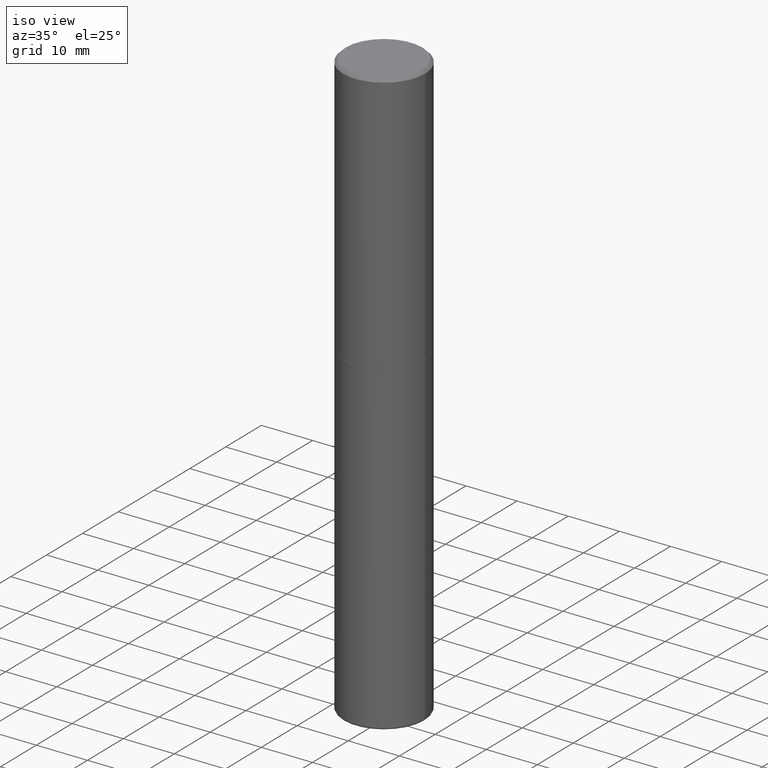
[diagram: clean part render]
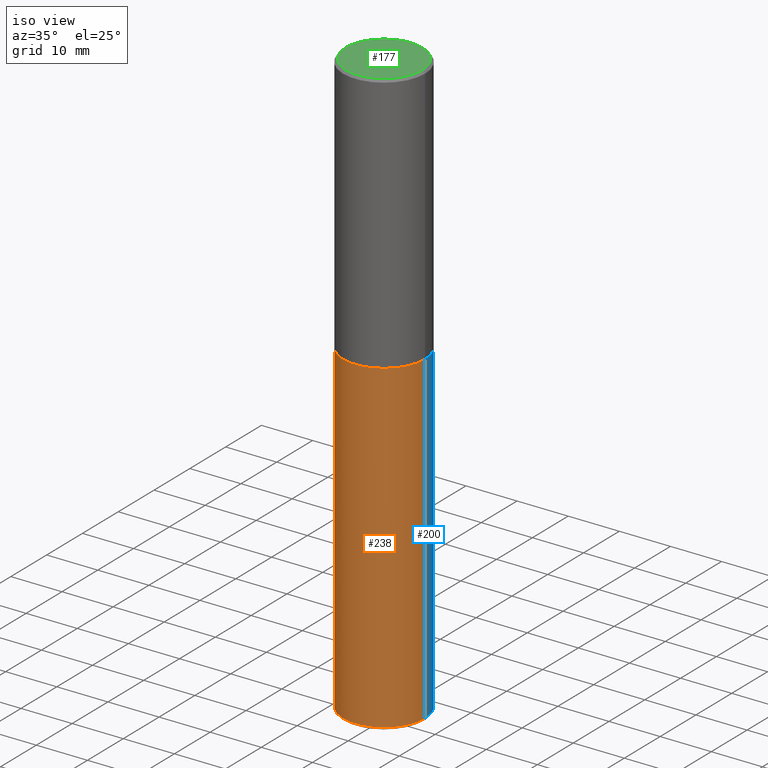
[diagram: same view with three faces highlighted in distinct colors, each labeled with its STEP entity id]
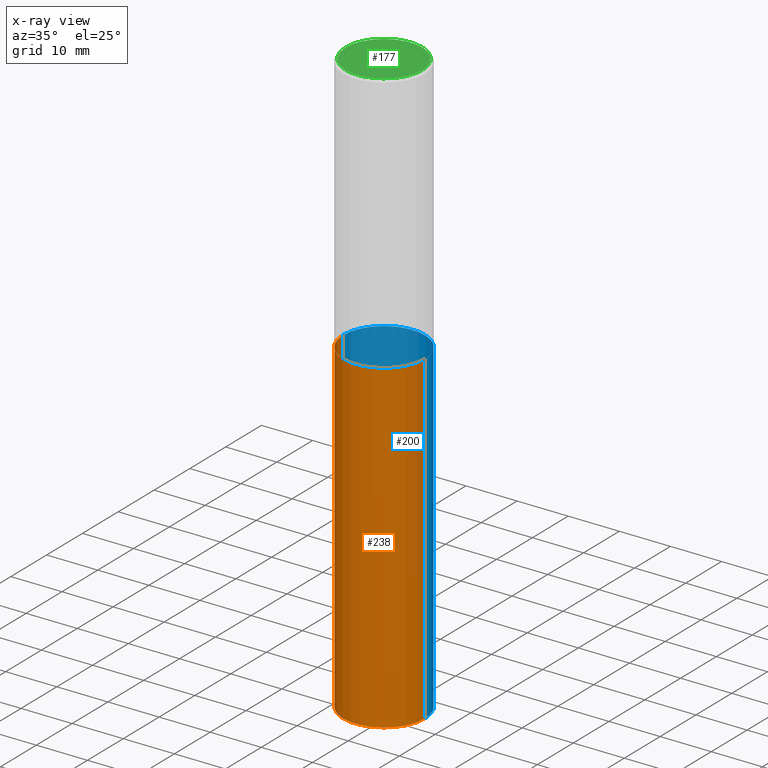
[diagram: x-ray of the same camera — body ghosted, the three highlighted faces saturated]
A machine part, iso view with three faces highlighted in distinct colors.
The next image is the same camera in x-ray (body ghosted, the three faces saturated) — at least one of them is partly hidden behind the body in this view.
Their STEP definitions:

[orange] entity #238 — the highlighted cylindrical surface (partial cylindrical patch) has radius 7.9997 mm, axis along (-0, 0, 1).
#8 = CARTESIAN_POINT ( 'NONE',  ( -0.3149499999999996747, -1.350139438109458461E-14, -4.507900000000000240 ) ) ;
#11 = VERTEX_POINT ( 'NONE', #8 ) ;
#16 = EDGE_CURVE ( 'NONE', #122, #355, #128, .T. ) ;
#30 = LINE ( 'NONE', #258, #216 ) ;
#31 = ORIENTED_EDGE ( 'NONE', *, *, #389, .F. ) ;
#35 = DIRECTION ( 'NONE',  ( -2.445468806185136877E-29, 3.491481338843145188E-15, 1.000000000000000000 ) ) ;
#55 = FACE_OUTER_BOUND ( 'NONE', #324, .T. ) ;
#60 = DIRECTION ( 'NONE',  ( -2.445468806185136597E-29, 3.491481338843145583E-15, 1.000000000000000000 ) ) ;
#64 = CARTESIAN_POINT ( 'NONE',  ( 0.000000000000000000, 0.000000000000000000, 0.000000000000000000 ) ) ;
#83 = CIRCLE ( 'NONE', #322, 0.3149500000000000077 ) ;
#94 = DIRECTION ( 'NONE',  ( -2.445468806185136877E-29, 3.491481338843145188E-15, 1.000000000000000000 ) ) ;
#112 = CARTESIAN_POINT ( 'NONE',  ( 0.3149499999999996747, -1.793853282270830731E-14, -4.507900000000000240 ) ) ;
#118 = VECTOR ( 'NONE', #35, 39.37007874015748143 ) ;
#122 = VERTEX_POINT ( 'NONE', #112 ) ;
#128 = LINE ( 'NONE', #259, #118 ) ;
#130 = DIRECTION ( 'NONE',  ( 1.000000000000000000, -6.982962677686269866E-15, 0.000000000000000000 ) ) ;
#151 = DIRECTION ( 'NONE',  ( 1.000000000000000000, -6.982962677686266711E-15, 4.876176775795936353E-29 ) ) ;
#192 = DIRECTION ( 'NONE',  ( -2.445468806185136597E-29, 3.491481338843145583E-15, 1.000000000000000000 ) ) ;
#207 = CIRCLE ( 'NONE', #415, 0.3149500000000000077 ) ;
#216 = VECTOR ( 'NONE', #94, 39.37007874015748143 ) ;
#219 = CARTESIAN_POINT ( 'NONE',  ( 1.102392883140197736E-28, -1.573924872737101586E-14, -4.507900000000000240 ) ) ;
#238 = ADVANCED_FACE ( 'NONE', ( #55 ), #351, .T. ) ;
#247 = ORIENTED_EDGE ( 'NONE', *, *, #309, .T. ) ;
#255 = CARTESIAN_POINT ( 'NONE',  ( 4.910256815939135870E-29, -7.010545380263151710E-15, -2.007899999999999796 ) ) ;
#258 = CARTESIAN_POINT ( 'NONE',  ( -0.3149500000000000077, 2.237854346276435590E-15, -1.549218606675782676E-29 ) ) ;
#259 = CARTESIAN_POINT ( 'NONE',  ( 0.3149500000000000077, -2.199284095337289871E-15, 1.535751875536930130E-29 ) ) ;
#303 = AXIS2_PLACEMENT_3D ( 'NONE', #64, #192, #151 ) ;
#309 = EDGE_CURVE ( 'NONE', #11, #122, #83, .T. ) ;
#320 = DIRECTION ( 'NONE',  ( 1.000000000000000000, -6.982962677686263555E-15, 0.000000000000000000 ) ) ;
#321 = VERTEX_POINT ( 'NONE', #326 ) ;
#322 = AXIS2_PLACEMENT_3D ( 'NONE', #219, #60, #130 ) ;
#324 = EDGE_LOOP ( 'NONE', ( #392, #247, #358, #31 ) ) ;
#326 = CARTESIAN_POINT ( 'NONE',  ( -0.3149500000000000077, -9.137042707540648986E-15, -2.007899999999999796 ) ) ;
#351 = CYLINDRICAL_SURFACE ( 'NONE', #303, 0.3149500000000000077 ) ;
#355 = VERTEX_POINT ( 'NONE', #387 ) ;
#358 = ORIENTED_EDGE ( 'NONE', *, *, #16, .T. ) ;
#384 = DIRECTION ( 'NONE',  ( -2.445468806185136597E-29, 3.491481338843145583E-15, 1.000000000000000000 ) ) ;
#387 = CARTESIAN_POINT ( 'NONE',  ( 0.3149500000000000077, -9.209829475600440793E-15, -2.007899999999999796 ) ) ;
#389 = EDGE_CURVE ( 'NONE', #321, #355, #207, .T. ) ;
#392 = ORIENTED_EDGE ( 'NONE', *, *, #407, .F. ) ;
#407 = EDGE_CURVE ( 'NONE', #11, #321, #30, .T. ) ;
#415 = AXIS2_PLACEMENT_3D ( 'NONE', #255, #384, #320 ) ;

[blue] entity #200 — the highlighted cylindrical surface (partial cylindrical patch) has radius 7.9997 mm, axis along (-0, 0, 1).
#8 = CARTESIAN_POINT ( 'NONE',  ( -0.3149499999999996747, -1.350139438109458461E-14, -4.507900000000000240 ) ) ;
#11 = VERTEX_POINT ( 'NONE', #8 ) ;
#16 = EDGE_CURVE ( 'NONE', #122, #355, #128, .T. ) ;
#30 = LINE ( 'NONE', #258, #216 ) ;
#32 = DIRECTION ( 'NONE',  ( -2.445468806185136597E-29, 3.491481338843145583E-15, 1.000000000000000000 ) ) ;
#35 = DIRECTION ( 'NONE',  ( -2.445468806185136877E-29, 3.491481338843145188E-15, 1.000000000000000000 ) ) ;
#40 = FACE_OUTER_BOUND ( 'NONE', #385, .T. ) ;
#57 = DIRECTION ( 'NONE',  ( 1.000000000000000000, -6.982962677686269866E-15, 0.000000000000000000 ) ) ;
#61 = ORIENTED_EDGE ( 'NONE', *, *, #132, .F. ) ;
#75 = CARTESIAN_POINT ( 'NONE',  ( 4.910256815939135870E-29, -7.010545380263151710E-15, -2.007899999999999796 ) ) ;
#92 = CARTESIAN_POINT ( 'NONE',  ( 1.102392883140197736E-28, -1.573924872737101586E-14, -4.507900000000000240 ) ) ;
#94 = DIRECTION ( 'NONE',  ( -2.445468806185136877E-29, 3.491481338843145188E-15, 1.000000000000000000 ) ) ;
#97 = ORIENTED_EDGE ( 'NONE', *, *, #16, .F. ) ;
#104 = DIRECTION ( 'NONE',  ( -2.445468806185136597E-29, 3.491481338843145583E-15, 1.000000000000000000 ) ) ;
#112 = CARTESIAN_POINT ( 'NONE',  ( 0.3149499999999996747, -1.793853282270830731E-14, -4.507900000000000240 ) ) ;
#118 = VECTOR ( 'NONE', #35, 39.37007874015748143 ) ;
#122 = VERTEX_POINT ( 'NONE', #112 ) ;
#128 = LINE ( 'NONE', #259, #118 ) ;
#132 = EDGE_CURVE ( 'NONE', #355, #321, #340, .T. ) ;
#133 = CIRCLE ( 'NONE', #308, 0.3149500000000000077 ) ;
#173 = DIRECTION ( 'NONE',  ( 1.000000000000000000, -6.982962677686266711E-15, 4.876176775795936353E-29 ) ) ;
#200 = ADVANCED_FACE ( 'NONE', ( #40 ), #269, .T. ) ;
#201 = DIRECTION ( 'NONE',  ( 1.000000000000000000, -6.982962677686263555E-15, 0.000000000000000000 ) ) ;
#216 = VECTOR ( 'NONE', #94, 39.37007874015748143 ) ;
#243 = DIRECTION ( 'NONE',  ( -2.445468806185136597E-29, 3.491481338843145583E-15, 1.000000000000000000 ) ) ;
#258 = CARTESIAN_POINT ( 'NONE',  ( -0.3149500000000000077, 2.237854346276435590E-15, -1.549218606675782676E-29 ) ) ;
#259 = CARTESIAN_POINT ( 'NONE',  ( 0.3149500000000000077, -2.199284095337289871E-15, 1.535751875536930130E-29 ) ) ;
#269 = CYLINDRICAL_SURFACE ( 'NONE', #373, 0.3149500000000000077 ) ;
#282 = EDGE_CURVE ( 'NONE', #122, #11, #133, .T. ) ;
#289 = AXIS2_PLACEMENT_3D ( 'NONE', #75, #243, #201 ) ;
#308 = AXIS2_PLACEMENT_3D ( 'NONE', #92, #32, #57 ) ;
#321 = VERTEX_POINT ( 'NONE', #326 ) ;
#326 = CARTESIAN_POINT ( 'NONE',  ( -0.3149500000000000077, -9.137042707540648986E-15, -2.007899999999999796 ) ) ;
#340 = CIRCLE ( 'NONE', #289, 0.3149500000000000077 ) ;
#352 = ORIENTED_EDGE ( 'NONE', *, *, #407, .T. ) ;
#355 = VERTEX_POINT ( 'NONE', #387 ) ;
#370 = CARTESIAN_POINT ( 'NONE',  ( 0.000000000000000000, 0.000000000000000000, 0.000000000000000000 ) ) ;
#373 = AXIS2_PLACEMENT_3D ( 'NONE', #370, #104, #173 ) ;
#385 = EDGE_LOOP ( 'NONE', ( #386, #352, #61, #97 ) ) ;
#386 = ORIENTED_EDGE ( 'NONE', *, *, #282, .T. ) ;
#387 = CARTESIAN_POINT ( 'NONE',  ( 0.3149500000000000077, -9.209829475600440793E-15, -2.007899999999999796 ) ) ;
#407 = EDGE_CURVE ( 'NONE', #11, #321, #30, .T. ) ;

[green] entity #177 — the highlighted planar face has unit normal (0, -0, -1).
#12 = CIRCLE ( 'NONE', #87, 0.2949499999999997679 ) ;
#39 = FACE_OUTER_BOUND ( 'NONE', #67, .T. ) ;
#59 = EDGE_CURVE ( 'NONE', #150, #416, #12, .T. ) ;
#67 = EDGE_LOOP ( 'NONE', ( #249, #390 ) ) ;
#77 = DIRECTION ( 'NONE',  ( -2.445468806185136597E-29, 3.491481338843145583E-15, 1.000000000000000000 ) ) ;
#87 = AXIS2_PLACEMENT_3D ( 'NONE', #137, #77, #276 ) ;
#108 = EDGE_CURVE ( 'NONE', #416, #150, #402, .T. ) ;
#109 = CARTESIAN_POINT ( 'NONE',  ( 0.2949499999999997679, -2.127023677808858891E-15, 1.835460370743323251E-16 ) ) ;
#110 = CARTESIAN_POINT ( 'NONE',  ( -4.488561081641444621E-45, 6.408475632635922878E-31, 1.835460370743176819E-16 ) ) ;
#137 = CARTESIAN_POINT ( 'NONE',  ( -4.488561081641444621E-45, 6.408475632635922878E-31, 1.835460370743176819E-16 ) ) ;
#150 = VERTEX_POINT ( 'NONE', #341 ) ;
#165 = DIRECTION ( 'NONE',  ( 2.438088387897960049E-29, -3.491481338843145188E-15, -1.000000000000000000 ) ) ;
#177 = ADVANCED_FACE ( 'NONE', ( #39 ), #364, .F. ) ;
#196 = CARTESIAN_POINT ( 'NONE',  ( 2.059624841783562486E-15, 0.2949499999999997679, -9.380394023546260134E-16 ) ) ;
#239 = DIRECTION ( 'NONE',  ( -2.445468806185136597E-29, 3.491481338843145583E-15, 1.000000000000000000 ) ) ;
#249 = ORIENTED_EDGE ( 'NONE', *, *, #59, .T. ) ;
#276 = DIRECTION ( 'NONE',  ( 1.000000000000000000, -6.982962677686265922E-15, 4.874125435057325556E-29 ) ) ;
#277 = DIRECTION ( 'NONE',  ( 1.000000000000000000, -6.982962677686265922E-15, 4.874125435057325556E-29 ) ) ;
#298 = AXIS2_PLACEMENT_3D ( 'NONE', #110, #239, #277 ) ;
#341 = CARTESIAN_POINT ( 'NONE',  ( -0.2949499999999997679, 2.094539655171994924E-15, 1.835460370743031619E-16 ) ) ;
#353 = DIRECTION ( 'NONE',  ( -1.000000000000000000, 6.982962677686265922E-15, -4.876176775795935793E-29 ) ) ;
#364 = PLANE ( 'NONE',  #393 ) ;
#390 = ORIENTED_EDGE ( 'NONE', *, *, #108, .T. ) ;
#393 = AXIS2_PLACEMENT_3D ( 'NONE', #196, #165, #353 ) ;
#402 = CIRCLE ( 'NONE', #298, 0.2949499999999997679 ) ;
#416 = VERTEX_POINT ( 'NONE', #109 ) ;